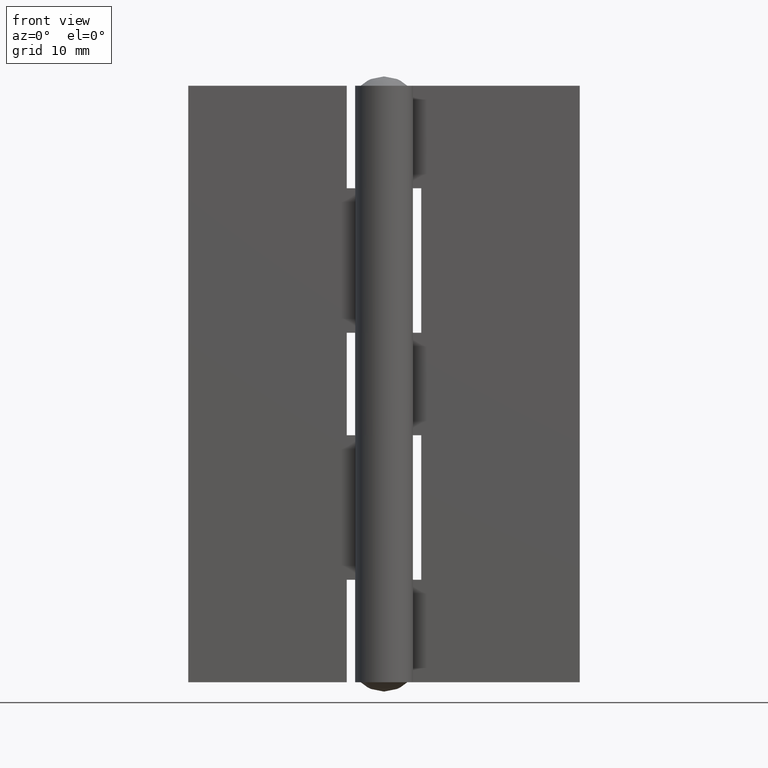
[diagram: clean part render]
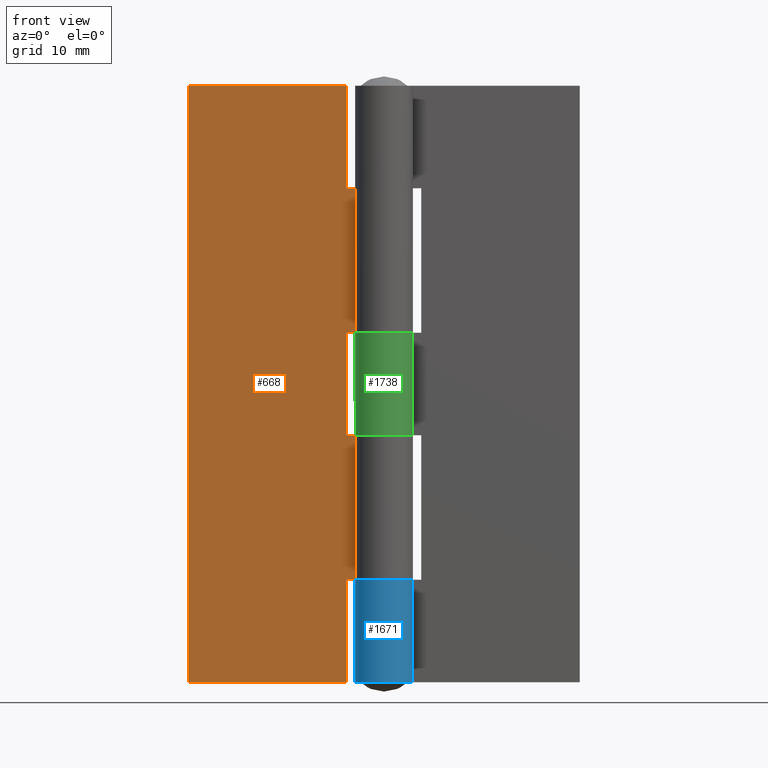
[diagram: same view with three faces highlighted in distinct colors, each labeled with its STEP entity id]
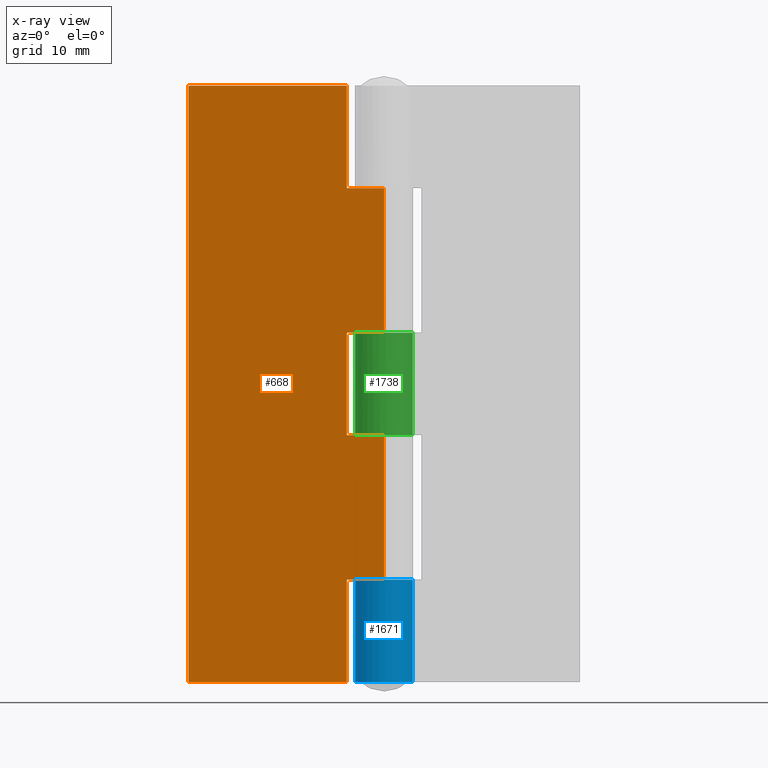
[diagram: x-ray of the same camera — body ghosted, the three highlighted faces saturated]
A machine part, front view with three faces highlighted in distinct colors.
The next image is the same camera in x-ray (body ghosted, the three faces saturated) — at least one of them is partly hidden behind the body in this view.
Their STEP definitions:

[orange] entity #668 — the highlighted face is a freeform B-spline surface patch.
#10=CARTESIAN_POINT('',(-4.000008000000000,1.699995999999925,64.000008000000093));
#11=VERTEX_POINT('',#10);
#12=CARTESIAN_POINT('',(-4.000008000000000,1.699995999999925,53.000007999999802));
#13=VERTEX_POINT('',#12);
#14=CARTESIAN_POINT('',(-4.000008000000000,1.699995999999925,64.000008000000093));
#15=CARTESIAN_POINT('',(-4.000008000000000,1.699995999999925,53.000007999999802));
#16=QUASI_UNIFORM_CURVE('',1,(#14,#15),.UNSPECIFIED.,.F.,.U.);
#17=EDGE_CURVE('',#11,#13,#16,.T.);
#46=CARTESIAN_POINT('',(-0.003687815627380,1.699995999999940,53.000007999999802));
#47=VERTEX_POINT('',#46);
#48=CARTESIAN_POINT('',(-4.000008000000000,1.699995999999925,53.000007999999802));
#49=CARTESIAN_POINT('',(-0.003687815627380,1.699995999999940,53.000007999999802));
#50=QUASI_UNIFORM_CURVE('',1,(#48,#49),.UNSPECIFIED.,.F.,.U.);
#51=EDGE_CURVE('',#13,#47,#50,.T.);
#136=CARTESIAN_POINT('',(-4.000008000000000,1.699995999999940,-1.705303E-013));
#137=VERTEX_POINT('',#136);
#152=CARTESIAN_POINT('',(-4.000008000000000,1.699995999999925,11.0));
#153=VERTEX_POINT('',#152);
#159=CARTESIAN_POINT('',(-4.000008000000000,1.699995999999940,-1.705303E-013));
#160=CARTESIAN_POINT('',(-4.000008000000000,1.699995999999925,11.0));
#161=QUASI_UNIFORM_CURVE('',1,(#159,#160),.UNSPECIFIED.,.F.,.U.);
#162=EDGE_CURVE('',#137,#153,#161,.T.);
#181=CARTESIAN_POINT('',(-0.003687815627380,1.699995999999940,11.0));
#182=VERTEX_POINT('',#181);
#213=CARTESIAN_POINT('',(-4.000008000000000,1.699995999999925,11.0));
#214=CARTESIAN_POINT('',(-0.003687815627380,1.699995999999940,11.0));
#215=QUASI_UNIFORM_CURVE('',1,(#213,#214),.UNSPECIFIED.,.F.,.U.);
#216=EDGE_CURVE('',#153,#182,#215,.T.);
#310=CARTESIAN_POINT('',(-0.003687815627380,1.699995999999940,37.500000000000000));
#311=VERTEX_POINT('',#310);
#340=CARTESIAN_POINT('',(-4.000008000000000,1.699995999999925,37.500000000000000));
#341=VERTEX_POINT('',#340);
#342=CARTESIAN_POINT('',(-0.003687815627380,1.699995999999940,37.500000000000000));
#343=CARTESIAN_POINT('',(-4.000008000000000,1.699995999999925,37.500000000000000));
#344=QUASI_UNIFORM_CURVE('',1,(#342,#343),.UNSPECIFIED.,.F.,.U.);
#345=EDGE_CURVE('',#311,#341,#344,.T.);
#367=CARTESIAN_POINT('',(-4.000008000000000,1.699995999999925,26.500000000000000));
#368=VERTEX_POINT('',#367);
#369=CARTESIAN_POINT('',(-4.000008000000000,1.699995999999925,37.500000000000000));
#370=CARTESIAN_POINT('',(-4.000008000000000,1.699995999999925,26.500000000000000));
#371=QUASI_UNIFORM_CURVE('',1,(#369,#370),.UNSPECIFIED.,.F.,.U.);
#372=EDGE_CURVE('',#341,#368,#371,.T.);
#437=CARTESIAN_POINT('',(-0.003687815627380,1.699995999999940,26.500000000000000));
#438=VERTEX_POINT('',#437);
#439=CARTESIAN_POINT('',(-4.000008000000000,1.699995999999925,26.500000000000000));
#440=CARTESIAN_POINT('',(-0.003687815627380,1.699995999999940,26.500000000000000));
#441=QUASI_UNIFORM_CURVE('',1,(#439,#440),.UNSPECIFIED.,.F.,.U.);
#442=EDGE_CURVE('',#368,#438,#441,.T.);
#488=CARTESIAN_POINT('',(-21.0,1.699995999999940,64.000007999999895));
#489=VERTEX_POINT('',#488);
#490=CARTESIAN_POINT('',(-4.000008000000000,1.699995999999925,64.000008000000093));
#491=CARTESIAN_POINT('',(-21.0,1.699995999999940,64.000007999999895));
#492=QUASI_UNIFORM_CURVE('',1,(#490,#491),.UNSPECIFIED.,.F.,.U.);
#493=EDGE_CURVE('',#11,#489,#492,.T.);
#539=CARTESIAN_POINT('',(-0.003687815627380,1.699995999999940,53.000007999999802));
#540=CARTESIAN_POINT('',(-0.003687815627380,1.699995999999940,37.500000000000000));
#541=QUASI_UNIFORM_CURVE('',1,(#539,#540),.UNSPECIFIED.,.F.,.U.);
#542=EDGE_CURVE('',#47,#311,#541,.T.);
#602=CARTESIAN_POINT('',(-21.0,1.699995999999940,-2.220446E-013));
#603=VERTEX_POINT('',#602);
#611=CARTESIAN_POINT('',(-21.0,1.699995999999940,64.000007999999895));
#612=CARTESIAN_POINT('',(-21.0,1.699995999999940,-2.220446E-013));
#613=QUASI_UNIFORM_CURVE('',1,(#611,#612),.UNSPECIFIED.,.F.,.U.);
#614=EDGE_CURVE('',#489,#603,#613,.T.);
#636=CARTESIAN_POINT('',(-4.000008000000000,1.699995999999940,-1.705303E-013));
#637=CARTESIAN_POINT('',(-21.0,1.699995999999940,-2.220446E-013));
#638=QUASI_UNIFORM_CURVE('',1,(#636,#637),.UNSPECIFIED.,.F.,.U.);
#639=EDGE_CURVE('',#137,#603,#638,.T.);
#645=CARTESIAN_POINT('',(-22.048765752914491,1.699995999999940,67.196808275555668));
#646=CARTESIAN_POINT('',(-22.048765752914491,1.699995999999940,-3.196801992169784));
#647=CARTESIAN_POINT('',(1.045078500452083,1.699995999999940,67.196808275555668));
#648=CARTESIAN_POINT('',(1.045078500452083,1.699995999999940,-3.196801992169784));
#649=B_SPLINE_SURFACE_WITH_KNOTS('',1,1,((#645,#647),(#646,#648)),.UNSPECIFIED.,.F.,.F.,.U.,(2,2),(2,2),(0.0,70.393610267725450),(0.0,23.093844253366569),.UNSPECIFIED.);
#650=ORIENTED_EDGE('',*,*,#51,.F.);
#651=ORIENTED_EDGE('',*,*,#17,.F.);
#652=ORIENTED_EDGE('',*,*,#493,.T.);
#653=ORIENTED_EDGE('',*,*,#614,.T.);
#654=ORIENTED_EDGE('',*,*,#639,.F.);
#655=ORIENTED_EDGE('',*,*,#162,.T.);
#656=ORIENTED_EDGE('',*,*,#216,.T.);
#657=CARTESIAN_POINT('',(-0.003687815627380,1.699995999999940,26.500000000000000));
#658=CARTESIAN_POINT('',(-0.003687815627380,1.699995999999940,11.0));
#659=QUASI_UNIFORM_CURVE('',1,(#657,#658),.UNSPECIFIED.,.F.,.U.);
#660=EDGE_CURVE('',#438,#182,#659,.T.);
#661=ORIENTED_EDGE('',*,*,#660,.F.);
#662=ORIENTED_EDGE('',*,*,#442,.F.);
#663=ORIENTED_EDGE('',*,*,#372,.F.);
#664=ORIENTED_EDGE('',*,*,#345,.F.);
#665=ORIENTED_EDGE('',*,*,#542,.F.);
#666=EDGE_LOOP('',(#650,#651,#652,#653,#654,#655,#656,#661,#662,#663,#664,#665));
#667=FACE_OUTER_BOUND('',#666,.T.);
#668=ADVANCED_FACE('',(#667),#649,.T.);

[blue] entity #1671 — the highlighted face is a freeform B-spline surface patch.
#787=CARTESIAN_POINT('',(2.624407209253950,1.649995999999940,11.0));
#788=VERTEX_POINT('',#787);
#794=CARTESIAN_POINT('',(2.624407209253950,1.649995999999940,0.0));
#795=VERTEX_POINT('',#794);
#796=CARTESIAN_POINT('',(2.624407209253950,1.649995999999940,11.0));
#797=CARTESIAN_POINT('',(2.624407209253950,1.649995999999940,0.0));
#798=QUASI_UNIFORM_CURVE('',1,(#796,#797),.UNSPECIFIED.,.F.,.U.);
#799=EDGE_CURVE('',#788,#795,#798,.T.);
#1454=CARTESIAN_POINT('',(0.003521362855411,3.099997999999935,11.0));
#1455=VERTEX_POINT('',#1454);
#1461=CARTESIAN_POINT('',(0.0,3.099997999999935,11.0));
#1462=VERTEX_POINT('',#1461);
#1463=CARTESIAN_POINT('',(0.0,3.099997999999935,11.0));
#1464=CARTESIAN_POINT('',(0.003521362855411,3.099997999999935,11.0));
#1465=QUASI_UNIFORM_CURVE('',1,(#1463,#1464),.UNSPECIFIED.,.F.,.U.);
#1466=EDGE_CURVE('',#1462,#1455,#1465,.T.);
#1468=CARTESIAN_POINT('',(2.624407209253950,1.649995999999940,11.0));
#1469=CARTESIAN_POINT('',(2.771789700592912,1.415765922598422,11.000000000000011));
#1470=CARTESIAN_POINT('',(2.954117194569980,1.015007042245608,11.000000000000011));
#1471=CARTESIAN_POINT('',(3.091528669905813,0.389400182150790,11.0));
#1472=CARTESIAN_POINT('',(3.114395885165194,-0.166245933070050,10.999999999999950));
#1473=CARTESIAN_POINT('',(3.020502815468901,-0.789894843481886,11.000000000000190));
#1474=CARTESIAN_POINT('',(2.811757037097620,-1.352266742586753,10.999999999999380));
#1475=CARTESIAN_POINT('',(2.526498635443016,-1.816244828091613,11.000000000001171));
#1476=CARTESIAN_POINT('',(2.210208624054150,-2.191387214860443,10.999999999998410));
#1477=CARTESIAN_POINT('',(1.823251706975515,-2.527940436225998,11.000000000000821));
#1478=CARTESIAN_POINT('',(1.400373290171370,-2.778861513434624,10.999999999999821));
#1479=CARTESIAN_POINT('',(0.926342725975071,-2.971603434060224,11.000000000000171));
#1480=CARTESIAN_POINT('',(0.385089849933177,-3.099357016109148,10.999999999999950));
#1481=CARTESIAN_POINT('',(-0.214656172317633,-3.111644192071105,11.0));
#1482=CARTESIAN_POINT('',(-0.793335707081155,-3.012285623563843,10.999999999999980));
#1483=CARTESIAN_POINT('',(-1.266965027535650,-2.844760989461761,11.000000000000050));
#1484=CARTESIAN_POINT('',(-1.733966294101717,-2.586727421946776,10.999999999999940));
#1485=CARTESIAN_POINT('',(-2.203373053723871,-2.215261886273868,11.000000000000160));
#1486=CARTESIAN_POINT('',(-2.576508992740417,-1.758420827110715,10.999999999999631));
#1487=CARTESIAN_POINT('',(-2.875148821888566,-1.204379296813814,11.000000000001000));
#1488=CARTESIAN_POINT('',(-3.040629955593805,-0.694991720437173,10.999999999997801));
#1489=CARTESIAN_POINT('',(-3.109009677525911,-0.144100390720928,11.000000000001950));
#1490=CARTESIAN_POINT('',(-3.090921155049497,0.442757244082720,10.999999999999710));
#1491=CARTESIAN_POINT('',(-2.954908206095635,1.006059393049283,10.999999999999920));
#1492=CARTESIAN_POINT('',(-2.701509141965800,1.547267127856626,10.999999999999810));
#1493=CARTESIAN_POINT('',(-2.425049461844516,1.953621570679128,11.000000000000160));
#1494=CARTESIAN_POINT('',(-2.026986379526703,2.370599624009406,10.999999999999931));
#1495=CARTESIAN_POINT('',(-1.494441025142770,2.749254913205062,11.000000000000030));
#1496=CARTESIAN_POINT('',(-0.787576127508661,3.032439277734364,11.0));
#1497=CARTESIAN_POINT('',(-0.266088293625625,3.100076568657656,11.0));
#1498=CARTESIAN_POINT('',(0.0,3.099997999999935,11.0));
#1499=B_SPLINE_CURVE_WITH_KNOTS('',3,(#1468,#1469,#1470,#1471,#1472,#1473,#1474,#1475,#1476,#1477,#1478,#1479,#1480,#1481,#1482,#1483,#1484,#1485,#1486,#1487,#1488,#1489,#1490,#1491,#1492,#1493,#1494,#1495,#1496,#1497,#1498),.UNSPECIFIED.,.F.,.U.,(4,1,1,1,1,1,1,1,1,1,1,1,1,1,1,1,1,1,1,1,1,1,1,1,1,1,1,1,4),(0.000000357613885,0.830186975548074,1.309144835187327,1.915826818131528,2.490580831395812,3.193055503410497,3.703940345108029,4.118990252662373,4.661819812436294,5.236584619231353,5.587828895672974,6.194509539225466,6.896994350820856,7.375952288892297,7.950694539733123,8.397700330192102,8.972442580469973,9.738786128412055,10.153885329676630,10.856371055960089,11.335336604709850,11.814277316815931,12.612497794983261,13.059541136494889,13.602359563817100,14.081327426579410,14.783805854337549,15.550149402526770,16.348394548667169),.UNSPECIFIED.);
#1500=EDGE_CURVE('',#788,#1462,#1499,.T.);
#1513=CARTESIAN_POINT('',(0.003521362855411,3.099997999999915,0.0));
#1514=VERTEX_POINT('',#1513);
#1530=CARTESIAN_POINT('',(2.624407209253950,1.649995999999940,0.0));
#1531=CARTESIAN_POINT('',(2.720742671484588,1.496797412467362,0.0));
#1532=CARTESIAN_POINT('',(2.896219920571848,1.154438582543611,0.0));
#1533=CARTESIAN_POINT('',(3.078742129146176,0.539122590038094,0.0));
#1534=CARTESIAN_POINT('',(3.120954444913656,-0.092384564543229,0.0));
#1535=CARTESIAN_POINT('',(3.039313805812369,-0.674208110614088,0.0));
#1536=CARTESIAN_POINT('',(2.869528988801856,-1.225243426078438,0.0));
#1537=CARTESIAN_POINT('',(2.569229311064119,-1.781921728185999,0.0));
#1538=CARTESIAN_POINT('',(2.130748370054064,-2.280419670318045,0.0));
#1539=CARTESIAN_POINT('',(1.593944341068975,-2.687280068359768,0.0));
#1540=CARTESIAN_POINT('',(0.970535306301410,-2.974878265138351,0.0));
#1541=CARTESIAN_POINT('',(0.213725282332701,-3.124529498148093,0.0));
#1542=CARTESIAN_POINT('',(-0.515712115460797,-3.086549329099650,0.0));
#1543=CARTESIAN_POINT('',(-1.161975502288500,-2.894319542508073,0.0));
#1544=CARTESIAN_POINT('',(-1.692903730908905,-2.618202763729281,0.0));
#1545=CARTESIAN_POINT('',(-2.197969968478938,-2.222193235943502,0.0));
#1546=CARTESIAN_POINT('',(-2.604831450179768,-1.723459730593995,0.0));
#1547=CARTESIAN_POINT('',(-2.931072494417082,-1.086055071265038,0.0));
#1548=CARTESIAN_POINT('',(-3.094220466330139,-0.451478794981360,0.0));
#1549=CARTESIAN_POINT('',(-3.110373545022495,0.200546078160806,0.0));
#1550=CARTESIAN_POINT('',(-3.017800495623043,0.791779698852571,0.0));
#1551=CARTESIAN_POINT('',(-2.818921736684465,1.334724126437864,0.0));
#1552=CARTESIAN_POINT('',(-2.543528794935586,1.792334769688597,0.0));
#1553=CARTESIAN_POINT('',(-2.230701779299473,2.170539581632740,0.0));
#1554=CARTESIAN_POINT('',(-1.886800467628885,2.475328101743589,0.0));
#1555=CARTESIAN_POINT('',(-1.437839629110991,2.763512708468860,0.0));
#1556=CARTESIAN_POINT('',(-0.826858474688873,3.022348448224410,0.0));
#1557=CARTESIAN_POINT('',(-0.305212320307658,3.100494912932140,0.0));
#1558=CARTESIAN_POINT('',(0.003521362855411,3.099997999999915,0.0));
#1559=B_SPLINE_CURVE_WITH_KNOTS('',3,(#1530,#1531,#1532,#1533,#1534,#1535,#1536,#1537,#1538,#1539,#1540,#1541,#1542,#1543,#1544,#1545,#1546,#1547,#1548,#1549,#1550,#1551,#1552,#1553,#1554,#1555,#1556,#1557,#1558),.UNSPECIFIED.,.F.,.U.,(4,1,1,1,1,1,1,1,1,1,1,1,1,1,1,1,1,1,1,1,1,1,1,1,1,1,4),(0.000000357809245,0.542912146146566,1.149724896532977,1.916239742029150,2.427244336413352,2.906303011491639,3.640878727665395,4.311530832758473,4.886396954273586,5.652905692015843,6.355535536638342,7.185926174543059,7.824681766775649,8.367544884817681,8.974376417323001,9.740885155071245,10.283824125698681,11.114205231838740,11.689093925010299,12.232040475215570,12.902654977000800,13.413672187132789,13.828864618126399,14.371803588760590,14.786992263893289,15.425759228401160,16.351918172537228),.UNSPECIFIED.);
#1560=EDGE_CURVE('',#795,#1514,#1559,.T.);
#1638=CARTESIAN_POINT('',(0.084668643572821,3.098843529576051,11.275000000000000));
#1639=CARTESIAN_POINT('',(0.084668643572821,3.098843529576051,-0.281874999999999));
#1640=CARTESIAN_POINT('',(-3.764927057535651,3.204024718366568,11.275000000000000));
#1641=CARTESIAN_POINT('',(-3.764927057535651,3.204024718366568,-0.281874999999999));
#1642=CARTESIAN_POINT('',(-3.045411903950673,-0.579194557360097,11.275000000000000));
#1643=CARTESIAN_POINT('',(-3.045411903950673,-0.579194557360097,-0.281874999999999));
#1644=CARTESIAN_POINT('',(-2.325896750365696,-4.362413833086763,11.275000000000000));
#1645=CARTESIAN_POINT('',(-2.325896750365696,-4.362413833086763,-0.281874999999999));
#1646=CARTESIAN_POINT('',(1.216323843878802,-2.851413036866467,11.275000000000000));
#1647=CARTESIAN_POINT('',(1.216323843878802,-2.851413036866467,-0.281874999999999));
#1648=CARTESIAN_POINT('',(4.758544438123299,-1.340412240646171,11.275000000000000));
#1649=CARTESIAN_POINT('',(4.758544438123299,-1.340412240646171,-0.281874999999999));
#1650=CARTESIAN_POINT('',(2.525801344491773,1.797311205151583,11.275000000000000));
#1651=CARTESIAN_POINT('',(2.525801344491773,1.797311205151583,-0.281874999999999));
#1659=(BOUNDED_SURFACE()B_SPLINE_SURFACE(1,2,((#1638,#1640,#1642,#1644,#1646,#1648,#1650),(#1639,#1641,#1643,#1645,#1647,#1649,#1651)),.UNSPECIFIED.,.F.,.F.,.U.)B_SPLINE_SURFACE_WITH_KNOTS((2,2),(3,2,2,3),(0.0,11.556875000000000),(0.0,5.936650138888179,11.873300277776361,17.809950416664542),.UNSPECIFIED.)GEOMETRIC_REPRESENTATION_ITEM()RATIONAL_B_SPLINE_SURFACE(((1.0,0.627057105746662,1.0,0.627057105746662,1.0,0.627057105746662,1.0),(1.0,0.627057105746662,1.0,0.627057105746662,1.0,0.627057105746662,1.0)))REPRESENTATION_ITEM('')SURFACE());
#1660=ORIENTED_EDGE('',*,*,#1500,.T.);
#1661=ORIENTED_EDGE('',*,*,#1466,.T.);
#1662=CARTESIAN_POINT('',(0.003521362855411,3.099997999999935,11.0));
#1663=CARTESIAN_POINT('',(0.003521362855411,3.099997999999915,0.0));
#1664=QUASI_UNIFORM_CURVE('',1,(#1662,#1663),.UNSPECIFIED.,.F.,.U.);
#1665=EDGE_CURVE('',#1455,#1514,#1664,.T.);
#1666=ORIENTED_EDGE('',*,*,#1665,.T.);
#1667=ORIENTED_EDGE('',*,*,#1560,.F.);
#1668=ORIENTED_EDGE('',*,*,#799,.F.);
#1669=EDGE_LOOP('',(#1660,#1661,#1666,#1667,#1668));
#1670=FACE_OUTER_BOUND('',#1669,.T.);
#1671=ADVANCED_FACE('',(#1670),#1659,.T.);

[green] entity #1738 — the highlighted face is a freeform B-spline surface patch.
#951=CARTESIAN_POINT('',(2.624407209253950,1.649995999999940,37.500000000000000));
#952=VERTEX_POINT('',#951);
#958=CARTESIAN_POINT('',(2.624407209253950,1.649995999999940,26.500000000000000));
#959=VERTEX_POINT('',#958);
#960=CARTESIAN_POINT('',(2.624407209253950,1.649995999999940,37.500000000000000));
#961=CARTESIAN_POINT('',(2.624407209253950,1.649995999999940,26.500000000000000));
#962=QUASI_UNIFORM_CURVE('',1,(#960,#961),.UNSPECIFIED.,.F.,.U.);
#963=EDGE_CURVE('',#952,#959,#962,.T.);
#1314=CARTESIAN_POINT('',(0.003521362855411,3.099997999999915,37.500000000000000));
#1315=VERTEX_POINT('',#1314);
#1321=CARTESIAN_POINT('',(0.0,3.099997999999915,37.500000000000000));
#1322=VERTEX_POINT('',#1321);
#1323=CARTESIAN_POINT('',(0.0,3.099997999999915,37.500000000000000));
#1324=CARTESIAN_POINT('',(0.003521362855411,3.099997999999915,37.500000000000000));
#1325=QUASI_UNIFORM_CURVE('',1,(#1323,#1324),.UNSPECIFIED.,.F.,.U.);
#1326=EDGE_CURVE('',#1322,#1315,#1325,.T.);
#1328=CARTESIAN_POINT('',(2.624407209253950,1.649995999999940,37.500000000000000));
#1329=CARTESIAN_POINT('',(2.794517851183103,1.379757867778623,37.500000000000078));
#1330=CARTESIAN_POINT('',(3.003044562161540,0.894954163223678,37.499999999999943));
#1331=CARTESIAN_POINT('',(3.106625727811950,0.229205013215627,37.500000000000050));
#1332=CARTESIAN_POINT('',(3.097846016938699,-0.336310207627372,37.499999999999979));
#1333=CARTESIAN_POINT('',(2.994451282125159,-0.872129727342997,37.500000000000092));
#1334=CARTESIAN_POINT('',(2.791699649237070,-1.377913508820191,37.499999999999609));
#1335=CARTESIAN_POINT('',(2.533479587368170,-1.807862973121836,37.500000000000561));
#1336=CARTESIAN_POINT('',(2.205083526529287,-2.201469582115449,37.500000000000327));
#1337=CARTESIAN_POINT('',(1.829121078698549,-2.518352916407661,37.500000000000867));
#1338=CARTESIAN_POINT('',(1.400745104999355,-2.778554653501563,37.499999999995580));
#1339=CARTESIAN_POINT('',(0.986810243133754,-2.951850190281240,37.500000000009891));
#1340=CARTESIAN_POINT('',(0.500050596093409,-3.072001525854569,37.499999999992049));
#1341=CARTESIAN_POINT('',(0.042381286106498,-3.112141230955984,37.500000000003837));
#1342=CARTESIAN_POINT('',(-0.511086283384951,-3.075019310402628,37.499999999998387));
#1343=CARTESIAN_POINT('',(-1.113477745283101,-2.922999231911096,37.500000000000902));
#1344=CARTESIAN_POINT('',(-1.693689203124961,-2.621627049560240,37.499999999999169));
#1345=CARTESIAN_POINT('',(-2.216919734879735,-2.198635901571830,37.500000000000860));
#1346=CARTESIAN_POINT('',(-2.637598137933153,-1.683672124494349,37.499999999998387));
#1347=CARTESIAN_POINT('',(-2.971729048401810,-0.988510592048390,37.500000000001968));
#1348=CARTESIAN_POINT('',(-3.117402128324026,-0.272915520690465,37.499999999996447));
#1349=CARTESIAN_POINT('',(-3.094533690622956,0.357969246029991,37.499999999996021));
#1350=CARTESIAN_POINT('',(-2.981050106555331,0.900924306833603,37.499999999995183));
#1351=CARTESIAN_POINT('',(-2.748625072493496,1.499032923735513,37.500000000004491));
#1352=CARTESIAN_POINT('',(-2.352711006540727,2.062035032660184,37.499999999998323));
#1353=CARTESIAN_POINT('',(-1.889241816510023,2.473423819421086,37.500000000000327));
#1354=CARTESIAN_POINT('',(-1.404824082503299,2.785148223983825,37.499999999999957));
#1355=CARTESIAN_POINT('',(-0.787580456964753,3.032436857764095,37.500000000000057));
#1356=CARTESIAN_POINT('',(-0.266087566007861,3.100077210733508,37.500000000000000));
#1357=CARTESIAN_POINT('',(0.0,3.099997999999915,37.500000000000000));
#1358=B_SPLINE_CURVE_WITH_KNOTS('',3,(#1328,#1329,#1330,#1331,#1332,#1333,#1334,#1335,#1336,#1337,#1338,#1339,#1340,#1341,#1342,#1343,#1344,#1345,#1346,#1347,#1348,#1349,#1350,#1351,#1352,#1353,#1354,#1355,#1356,#1357),.UNSPECIFIED.,.F.,.U.,(4,1,1,1,1,1,1,1,1,1,1,1,1,1,1,1,1,1,1,1,1,1,1,1,1,1,1,4),(0.000000357609629,0.957899609450287,1.564584206526464,2.011619614524985,2.650242730118702,3.193055503407884,3.640094141637780,4.150937024216015,4.725677527897803,5.108871197198209,5.651687571481636,6.066786772490479,6.609608740499310,7.024711692816526,7.727178762058548,8.461546216809156,8.972442580469469,9.738786128411718,10.441264556357400,11.271476244888580,11.910094186808120,12.325134137523230,12.931830592922420,13.825884685272010,14.368706653548619,14.783805854337521,15.550149402526751,16.348394548667169),.UNSPECIFIED.);
#1359=EDGE_CURVE('',#952,#1322,#1358,.T.);
#1374=CARTESIAN_POINT('',(0.003521362855411,3.099997999999935,26.500000000000000));
#1375=VERTEX_POINT('',#1374);
#1376=CARTESIAN_POINT('',(0.003521362855411,3.099997999999935,26.500000000000000));
#1377=CARTESIAN_POINT('',(-0.273278987237036,3.100413793995272,26.500000000000011));
#1378=CARTESIAN_POINT('',(-0.709758251903017,3.041930877931177,26.499999999999961));
#1379=CARTESIAN_POINT('',(-1.312890040405097,2.825874897528095,26.500000000000139));
#1380=CARTESIAN_POINT('',(-1.740112460157483,2.581751894388831,26.499999999999709));
#1381=CARTESIAN_POINT('',(-2.155198772635139,2.246896581370086,26.500000000000309));
#1382=CARTESIAN_POINT('',(-2.491326155073775,1.873031551683651,26.499999999999829));
#1383=CARTESIAN_POINT('',(-2.816233979428932,1.345505751279137,26.500000000000391));
#1384=CARTESIAN_POINT('',(-3.019044929373341,0.791870520721981,26.500000000000071));
#1385=CARTESIAN_POINT('',(-3.102107015632486,0.242658429437655,26.499999999999840));
#1386=CARTESIAN_POINT('',(-3.102516454448022,-0.237480132546271,26.500000000000188));
#1387=CARTESIAN_POINT('',(-3.026647646804474,-0.744580119774101,26.499999999999890));
#1388=CARTESIAN_POINT('',(-2.853911880684396,-1.250765571676713,26.500000000000021));
#1389=CARTESIAN_POINT('',(-2.565161354233331,-1.774388787326416,26.500000000000021));
#1390=CARTESIAN_POINT('',(-2.215411052905899,-2.194210860629919,26.499999999999890));
#1391=CARTESIAN_POINT('',(-1.738264632985281,-2.588636015578644,26.500000000000291));
#1392=CARTESIAN_POINT('',(-1.185165995571760,-2.894679833393032,26.500000000000188));
#1393=CARTESIAN_POINT('',(-0.431646710290215,-3.106151883123351,26.499999999999702));
#1394=CARTESIAN_POINT('',(0.299765281644752,-3.114077092629437,26.500000000000739));
#1395=CARTESIAN_POINT('',(0.904516410870696,-2.978085468493910,26.499999999999179));
#1396=CARTESIAN_POINT('',(1.420699718364400,-2.774643930642303,26.499999999998519));
#1397=CARTESIAN_POINT('',(1.857567521023891,-2.503290821374392,26.500000000002469));
#1398=CARTESIAN_POINT('',(2.284540309508698,-2.116439941212303,26.499999999996959));
#1399=CARTESIAN_POINT('',(2.603330735060978,-1.713959215720997,26.500000000001378));
#1400=CARTESIAN_POINT('',(2.854469839441901,-1.242602012899518,26.499999999999780));
#1401=CARTESIAN_POINT('',(3.020494837992184,-0.757709316967766,26.500000000000171));
#1402=CARTESIAN_POINT('',(3.122409789606294,-0.146297670628988,26.499999999999641));
#1403=CARTESIAN_POINT('',(3.087272945139791,0.475698027030252,26.500000000001890));
#1404=CARTESIAN_POINT('',(2.912108973255516,1.114135659693721,26.499999999996461));
#1405=CARTESIAN_POINT('',(2.743427692267996,1.460750920522173,26.500000000000892));
#1406=CARTESIAN_POINT('',(2.624407209253950,1.649995999999940,26.500000000000000));
#1407=B_SPLINE_CURVE_WITH_KNOTS('',3,(#1376,#1377,#1378,#1379,#1380,#1381,#1382,#1383,#1384,#1385,#1386,#1387,#1388,#1389,#1390,#1391,#1392,#1393,#1394,#1395,#1396,#1397,#1398,#1399,#1400,#1401,#1402,#1403,#1404,#1405,#1406),.UNSPECIFIED.,.F.,.U.,(4,1,1,1,1,1,1,1,1,1,1,1,1,1,1,1,1,1,1,1,1,1,1,1,1,1,1,1,4),(0.000000357810293,0.830365884735723,1.309426987713648,1.916239742029655,2.299495000927475,2.906303011491945,3.417313620691523,4.151831677639143,4.662824567854770,5.078012855235969,5.589033251566262,6.195844662636647,6.674905778241273,7.377542075555295,7.824681766775649,8.527236726082617,9.261822700709404,10.156073830190360,10.699012800838171,11.114205231838699,11.816823713969621,12.232040475215539,12.838783493959779,13.349802163758440,13.828864618126410,14.371803588760590,15.202184694890351,15.681239028608640,16.351918172537239),.UNSPECIFIED.);
#1408=EDGE_CURVE('',#1375,#959,#1407,.T.);
#1705=CARTESIAN_POINT('',(0.030573471364589,3.099849232277037,37.775000000000013));
#1706=CARTESIAN_POINT('',(0.030573471364589,3.099849232277037,26.218125000000001));
#1707=CARTESIAN_POINT('',(-3.797421531261720,3.137604325130573,37.775000000000006));
#1708=CARTESIAN_POINT('',(-3.797421531261720,3.137604325130573,26.218124999999993));
#1709=CARTESIAN_POINT('',(-3.038466671313922,-0.614589527501509,37.775000000000013));
#1710=CARTESIAN_POINT('',(-3.038466671313922,-0.614589527501509,26.218125000000001));
#1711=CARTESIAN_POINT('',(-2.279511811366123,-4.366783380133592,37.775000000000006));
#1712=CARTESIAN_POINT('',(-2.279511811366123,-4.366783380133592,26.218124999999993));
#1713=CARTESIAN_POINT('',(1.232892014887983,-2.844288536633654,37.775000000000013));
#1714=CARTESIAN_POINT('',(1.232892014887983,-2.844288536633654,26.218125000000001));
#1715=CARTESIAN_POINT('',(4.745295841142088,-1.321793693133714,37.775000000000006));
#1716=CARTESIAN_POINT('',(4.745295841142088,-1.321793693133714,26.218124999999993));
#1717=CARTESIAN_POINT('',(2.525801344491774,1.797311205151586,37.775000000000013));
#1718=CARTESIAN_POINT('',(2.525801344491774,1.797311205151586,26.218125000000001));
#1726=(BOUNDED_SURFACE()B_SPLINE_SURFACE(1,2,((#1705,#1707,#1709,#1711,#1713,#1715,#1717),(#1706,#1708,#1710,#1712,#1714,#1716,#1718)),.UNSPECIFIED.,.F.,.F.,.U.)B_SPLINE_SURFACE_WITH_KNOTS((2,2),(3,2,2,3),(0.0,11.556875000000010),(0.0,5.914496605457184,11.828993210914369,17.743489816371550),.UNSPECIFIED.)GEOMETRIC_REPRESENTATION_ITEM()RATIONAL_B_SPLINE_SURFACE(((1.0,0.629320391049838,1.0,0.629320391049838,1.0,0.629320391049838,1.0),(1.0,0.629320391049838,1.0,0.629320391049838,1.0,0.629320391049838,1.0)))REPRESENTATION_ITEM('')SURFACE());
#1727=ORIENTED_EDGE('',*,*,#1359,.T.);
#1728=ORIENTED_EDGE('',*,*,#1326,.T.);
#1729=CARTESIAN_POINT('',(0.003521362855411,3.099997999999915,37.500000000000000));
#1730=CARTESIAN_POINT('',(0.003521362855411,3.099997999999935,26.500000000000000));
#1731=QUASI_UNIFORM_CURVE('',1,(#1729,#1730),.UNSPECIFIED.,.F.,.U.);
#1732=EDGE_CURVE('',#1315,#1375,#1731,.T.);
#1733=ORIENTED_EDGE('',*,*,#1732,.T.);
#1734=ORIENTED_EDGE('',*,*,#1408,.T.);
#1735=ORIENTED_EDGE('',*,*,#963,.F.);
#1736=EDGE_LOOP('',(#1727,#1728,#1733,#1734,#1735));
#1737=FACE_OUTER_BOUND('',#1736,.T.);
#1738=ADVANCED_FACE('',(#1737),#1726,.T.);